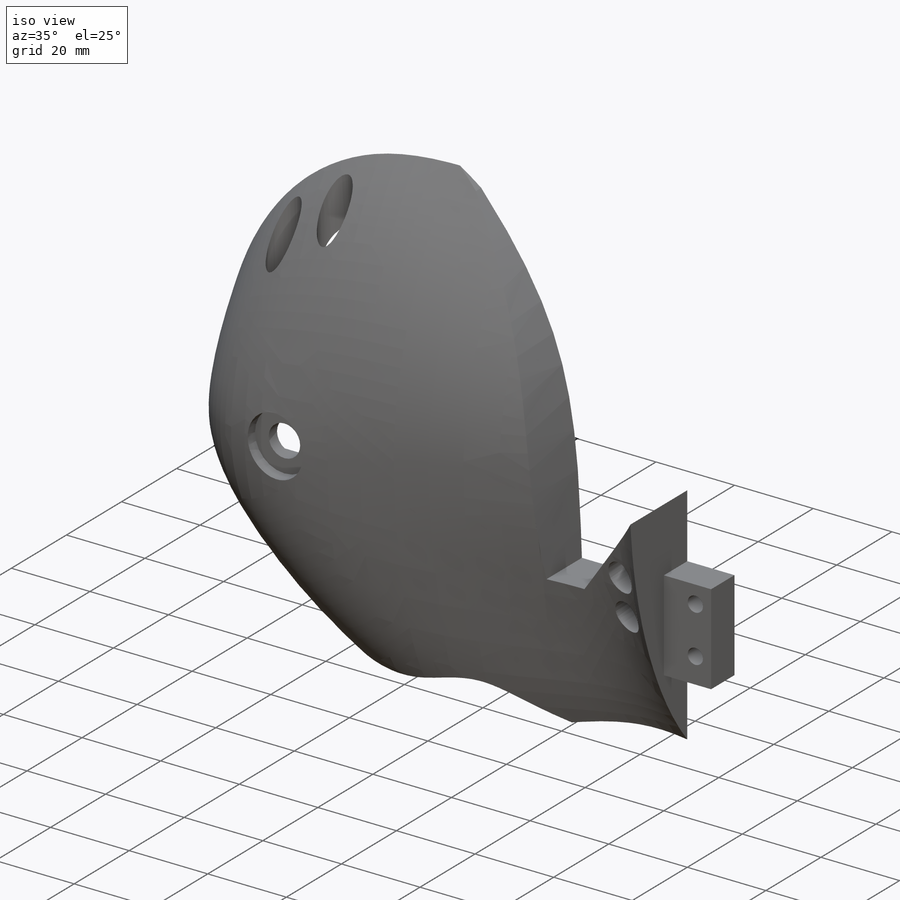
[diagram: iso view]
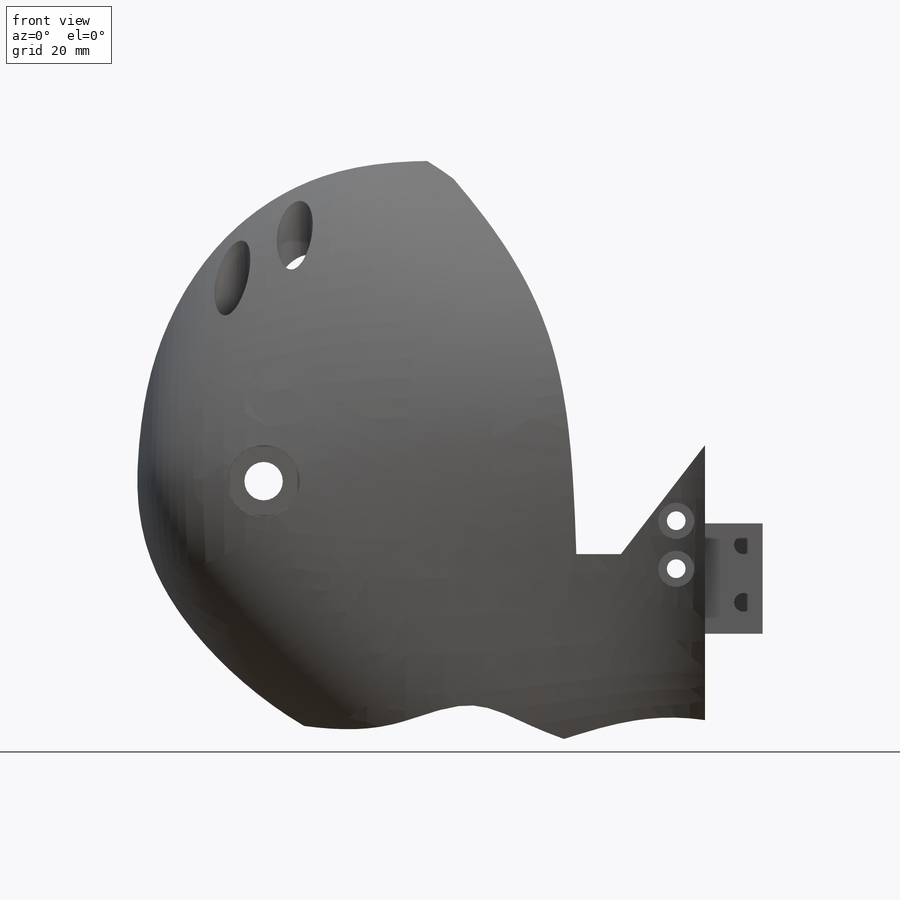
[diagram: front view]
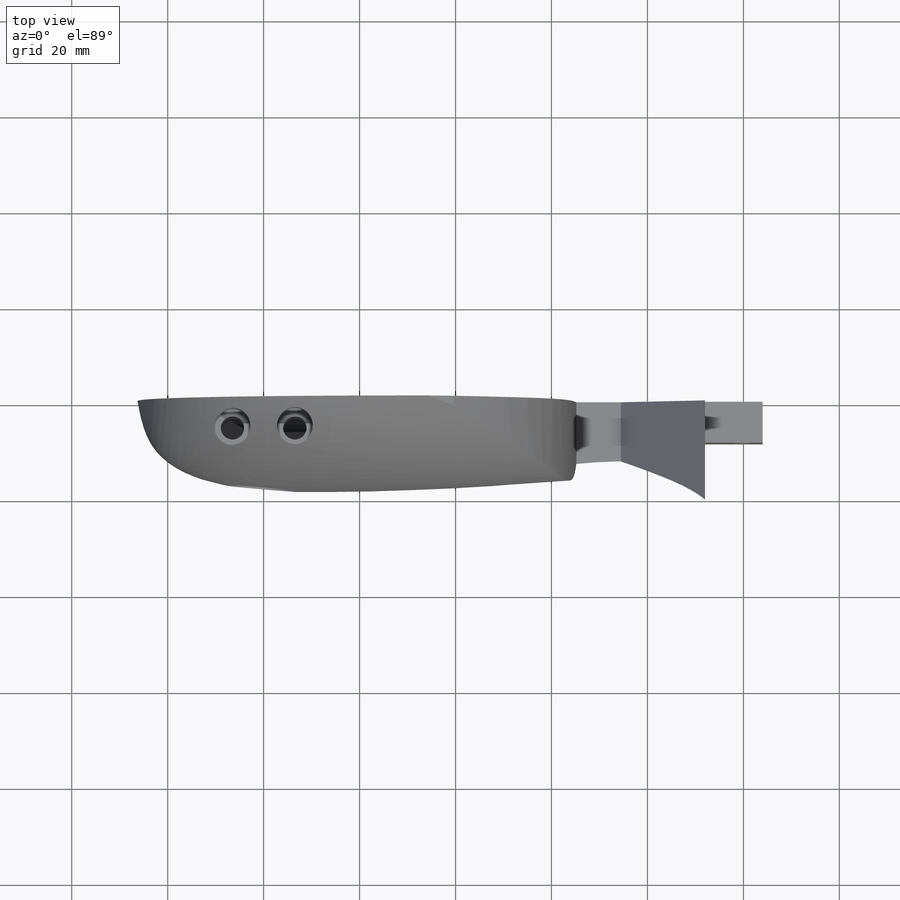
[diagram: top view]
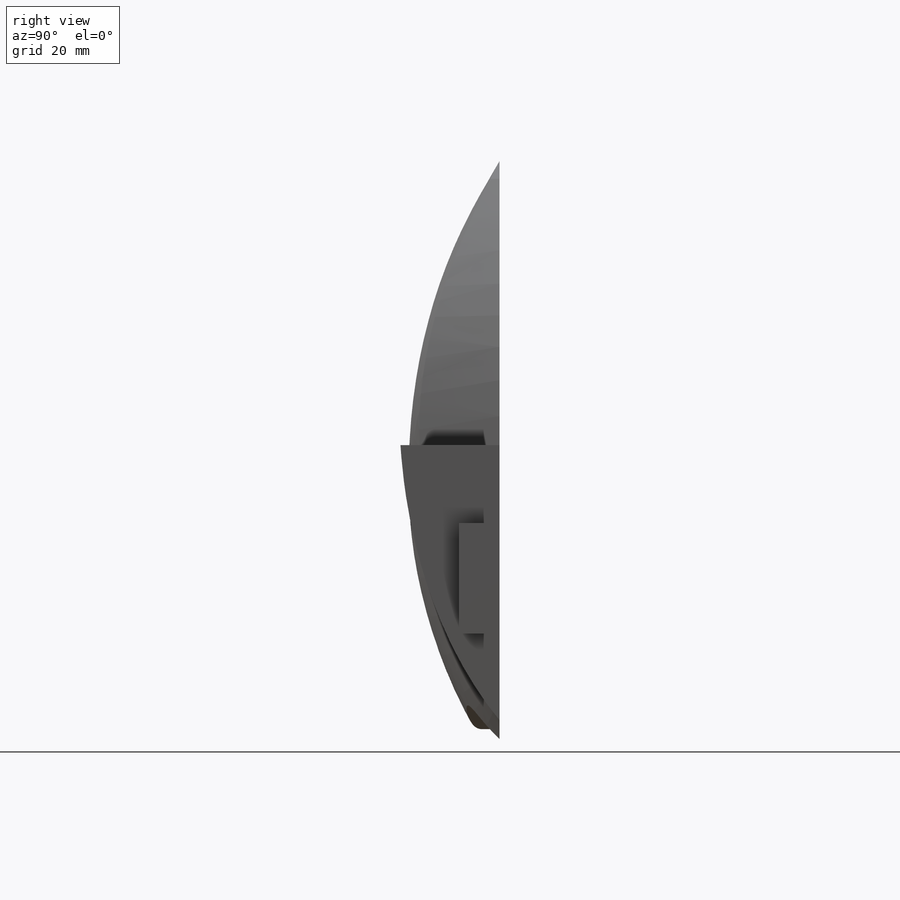
[diagram: right view]
SOLIDWORKS PART (.sldprt)
format: sldprt  version: not decoded by parser v0  size: 1,869,312 bytes
history: native  units: mm
features: sketch x10, cut_extrude x9, plane x2, material x1, move_body x1, extrude x1, fillet x1 (+14 scaffold rows collapsed; 2 parser-record rows omitted)
feature tree (41):
  scaffold x14  (default folders/planes/origin — collapsed)
  material  "ABS"
  move_body  "Body-Move/Copy1"
  parser-record x2  (decoder bookkeeping rows leaked as tree rows — omitted from the tree; the rows remain in map.json)
  sketch  "Sketch1"  dims[D1=12.0mm D2=23.0mm D3=18.0mm]
  extrude  "Extrude1"  Depth=8.5mm
  sketch  "Sketch2"  dims[D1=3.9mm D2=12.0mm D3=4.0mm D4=6.5mm D5=4.5mm]
  cut_extrude  "Extrude2"  Depth=6mm
  sketch  "Sketch3"  dims[D1=10.0mm]
  cut_extrude  "Extrude3"  Depth=6mm
  fillet  "Fillet1"  Radius=6mm
  sketch  "Sketch4"  dims[D1=8.0mm]
  cut_extrude  "Extrude4"  [1 undecoded]
  sketch  "Sketch5"  dims[D1=4.9mm D2=13.0mm D3=6.0mm]
  cut_extrude  "Extrude5"  Depth=55.306097mm
  plane  "Plane1"  Offset=68mm
  sketch  "Sketch6"  dims[D1=7.5mm]
  cut_extrude  "Extrude6"  Depth=45.970722mm
  plane  "Plane2"  Offset=28mm
  sketch  "Sketch7"  dims[D1=15.0mm]
  cut_extrude  "Extrude7"  Depth=3mm
  sketch  "Sketch8"  dims[c1.D1=3.9mm c1.D2=3.9mm c2.D1=~7.809042mm]
  cut_extrude  "Cut-Extrude1"  Depth=22mm
  sketch  "Sketch9"  dims[D1=7.5mm]
  cut_extrude  "Extrude8"  Depth=5mm
  sketch  "Sketch10"  dims[D1=1.0mm D2=25.0mm D3=1.0mm D4=1.0mm D5=1.0mm]
  cut_extrude  "Extrude9"  Depth=1.5mm
decode coverage: 20 of 22 modeling features carry decoded parameters
note: ~ marks probable driven/reference dimensions
note: 1 parameter value undecoded
note: suppression state not decoded; provenance and decode notes live in map.json
